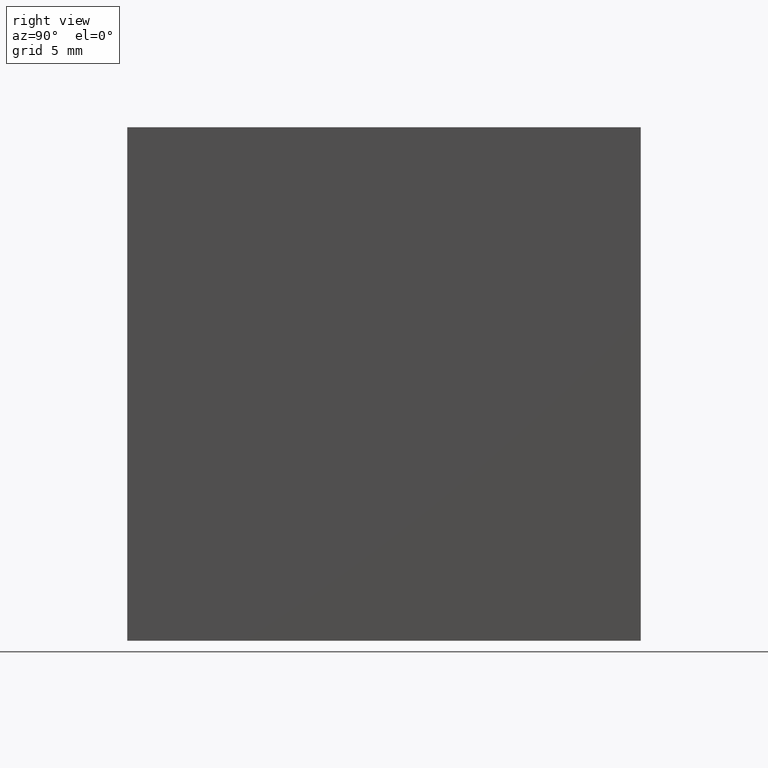
[diagram: clean part render]
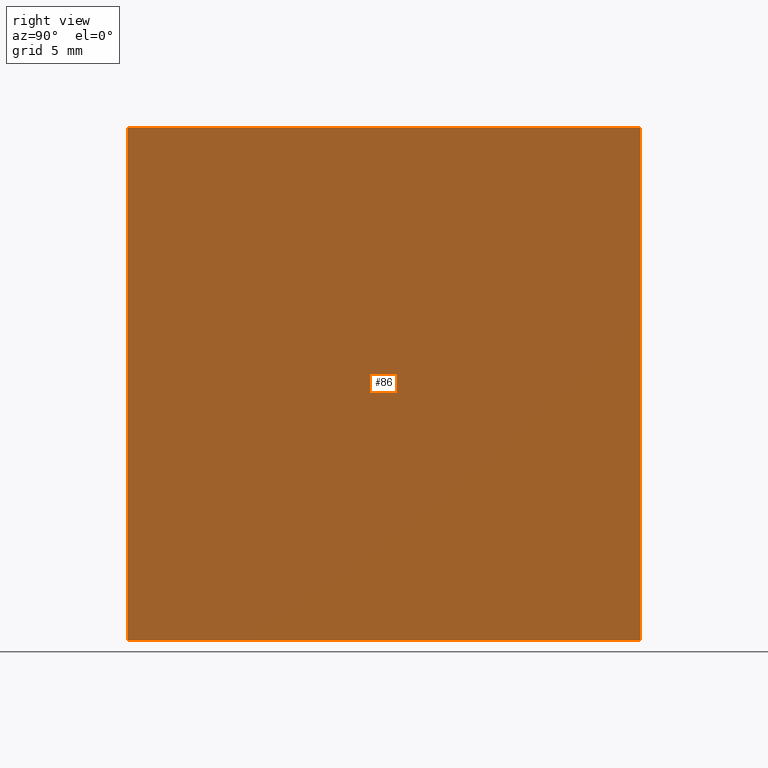
[diagram: same view with one face highlighted and labeled with its STEP entity id]
A machine part, right view. The second image highlights one B-rep face of the part: STEP entity #86.
In plain terms, the highlighted planar face has unit normal (-1, 0, 0).
Its self-contained STEP definition (entity closure, byte-faithful):
#7 = AXIS2_PLACEMENT_3D ( 'NONE', #140, #60, #180 ) ;
#15 = CARTESIAN_POINT ( 'NONE',  ( -121.5047956651487300, 0.0000000000000000000, 10.00000000000000000 ) ) ;
#29 = PLANE ( 'NONE',  #7 ) ;
#30 = VERTEX_POINT ( 'NONE', #175 ) ;
#39 = DIRECTION ( 'NONE',  ( -0.0000000000000000000, -0.0000000000000000000, -1.000000000000000000 ) ) ;
#45 = ORIENTED_EDGE ( 'NONE', *, *, #125, .T. ) ;
#46 = ORIENTED_EDGE ( 'NONE', *, *, #158, .F. ) ;
#47 = LINE ( 'NONE', #75, #84 ) ;
#52 = EDGE_LOOP ( 'NONE', ( #45, #64, #46, #200 ) ) ;
#53 = CARTESIAN_POINT ( 'NONE',  ( -121.5047956651487300, 20.00000000000000000, -10.00000000000000400 ) ) ;
#58 = VERTEX_POINT ( 'NONE', #199 ) ;
#60 = DIRECTION ( 'NONE',  ( -1.000000000000000000, 0.0000000000000000000, 0.0000000000000000000 ) ) ;
#64 = ORIENTED_EDGE ( 'NONE', *, *, #77, .F. ) ;
#67 = CARTESIAN_POINT ( 'NONE',  ( -121.5047956651487300, 20.00000000000000000, -10.00000000000000400 ) ) ;
#72 = VECTOR ( 'NONE', #83, 1000.000000000000000 ) ;
#75 = CARTESIAN_POINT ( 'NONE',  ( -121.5047956651487300, 20.00000000000000000, 10.00000000000000000 ) ) ;
#77 = EDGE_CURVE ( 'NONE', #81, #30, #117, .T. ) ;
#81 = VERTEX_POINT ( 'NONE', #157 ) ;
#83 = DIRECTION ( 'NONE',  ( -0.0000000000000000000, -0.0000000000000000000, -1.000000000000000000 ) ) ;
#84 = VECTOR ( 'NONE', #147, 1000.000000000000000 ) ;
#86 = ADVANCED_FACE ( 'NONE', ( #173 ), #29, .F. ) ;
#87 = VERTEX_POINT ( 'NONE', #15 ) ;
#90 = LINE ( 'NONE', #174, #195 ) ;
#116 = LINE ( 'NONE', #67, #72 ) ;
#117 = LINE ( 'NONE', #53, #120 ) ;
#120 = VECTOR ( 'NONE', #185, 1000.000000000000000 ) ;
#125 = EDGE_CURVE ( 'NONE', #87, #30, #90, .T. ) ;
#140 = CARTESIAN_POINT ( 'NONE',  ( -121.5047956651487300, 20.00000000000000000, -10.00000000000000400 ) ) ;
#147 = DIRECTION ( 'NONE',  ( -0.0000000000000000000, -1.000000000000000000, -0.0000000000000000000 ) ) ;
#152 = EDGE_CURVE ( 'NONE', #58, #87, #47, .T. ) ;
#157 = CARTESIAN_POINT ( 'NONE',  ( -121.5047956651487300, 20.00000000000000000, -10.00000000000000400 ) ) ;
#158 = EDGE_CURVE ( 'NONE', #58, #81, #116, .T. ) ;
#173 = FACE_OUTER_BOUND ( 'NONE', #52, .T. ) ;
#174 = CARTESIAN_POINT ( 'NONE',  ( -121.5047956651487300, 0.0000000000000000000, -10.00000000000000400 ) ) ;
#175 = CARTESIAN_POINT ( 'NONE',  ( -121.5047956651487300, 0.0000000000000000000, -10.00000000000000400 ) ) ;
#180 = DIRECTION ( 'NONE',  ( 0.0000000000000000000, 0.0000000000000000000, 1.000000000000000000 ) ) ;
#185 = DIRECTION ( 'NONE',  ( -0.0000000000000000000, -1.000000000000000000, -0.0000000000000000000 ) ) ;
#195 = VECTOR ( 'NONE', #39, 1000.000000000000000 ) ;
#199 = CARTESIAN_POINT ( 'NONE',  ( -121.5047956651487300, 20.00000000000000000, 10.00000000000000000 ) ) ;
#200 = ORIENTED_EDGE ( 'NONE', *, *, #152, .T. ) ;